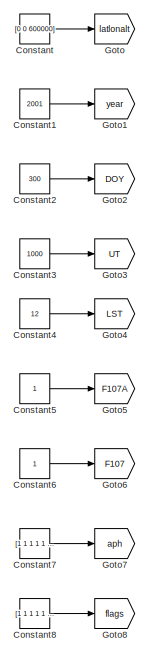
[diagram: root canvas - part 1/2, left side, full height]
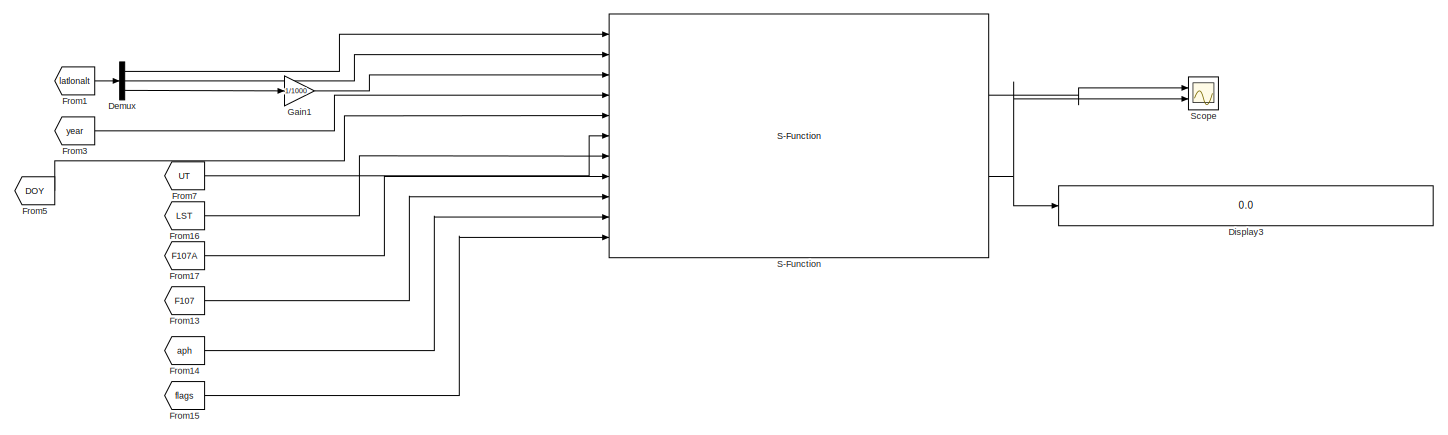
[diagram: root canvas - part 2/2, full width, middle band]
MODEL test_rapidaccel
KIND model
BLOCK [Constant] Constant
  SID = 2
  Value = [0 0 600000]
BLOCK [Constant] Constant1
  SID = 3
  Value = 2001
BLOCK [Constant] Constant2
  SID = 4
  Value = 300
BLOCK [Constant] Constant3
  SID = 5
  Value = 1000
BLOCK [Constant] Constant4
  SID = 6
  Value = 12
BLOCK [Constant] Constant5
  SID = 7
BLOCK [Constant] Constant6
  SID = 8
BLOCK [Constant] Constant7
  SID = 9
  Value = [1 1 1 1 1 1 1]
BLOCK [Constant] Constant8
  SID = 10
  Value = [1 1 1 1 1 1 1 1 1 1 1 1 1 1 1 1 1 1 1 1 1 1 1]
BLOCK [Demux] Demux
  DisplayOption = bar
  Outputs = 3
  Ports = [1, 3]
  SID = 20
BLOCK [Display] Display3
  Decimation = 1
  Format = long_e
  Lockdown = off
  Ports = [1]
  SID = 31
BLOCK [From] From1
  GotoTag = latlonalt
  SID = 21
BLOCK [From] From13
  GotoTag = F107
  SID = 22
BLOCK [From] From14
  GotoTag = aph
  SID = 23
BLOCK [From] From15
  GotoTag = flags
  SID = 24
BLOCK [From] From16
  GotoTag = LST
  SID = 25
BLOCK [From] From17
  GotoTag = F107A
  SID = 26
BLOCK [From] From3
  GotoTag = year
  SID = 27
BLOCK [From] From5
  GotoTag = DOY
  SID = 28
BLOCK [From] From7
  GotoTag = UT
  SID = 29
BLOCK [Gain] Gain1
  Gain = 1/1000
  OutDataTypeStr = Inherit: Inherit via internal rule
  ParamDataTypeStr = Inherit: Inherit via internal rule
  SID = 30
  SaturateOnIntegerOverflow = off
BLOCK [Goto] Goto
  GotoTag = latlonalt
  SID = 11
  TagVisibility = local
BLOCK [Goto] Goto1
  GotoTag = year
  SID = 12
  TagVisibility = local
BLOCK [Goto] Goto2
  GotoTag = DOY
  SID = 13
  TagVisibility = local
BLOCK [Goto] Goto3
  GotoTag = UT
  SID = 14
  TagVisibility = local
BLOCK [Goto] Goto4
  GotoTag = LST
  SID = 15
  TagVisibility = local
BLOCK [Goto] Goto5
  GotoTag = F107A
  SID = 16
  TagVisibility = local
BLOCK [Goto] Goto6
  GotoTag = F107
  SID = 17
  TagVisibility = local
BLOCK [Goto] Goto7
  GotoTag = aph
  SID = 18
  TagVisibility = local
BLOCK [Goto] Goto8
  GotoTag = flags
  SID = 19
  TagVisibility = local
BLOCK [S-Function] S-Function
  EnableBusSupport = off
  FunctionName = sfunc_nrlmsise00
  Ports = [11, 2]
  SID = 1
BLOCK [Scope] Scope
  DataFormat = StructureWithTime
  Floating = off
  LimitDataPoints = off
  NumInputPorts = 2
  Ports = [2]
  SID = 42
  SampleTime = 0
  YMax = 442.32~2.752e-018
  YMin = 442.32~2.752e-018
LINE Constant1:1 -> Goto1:1
LINE Constant2:1 -> Goto2:1
LINE Constant3:1 -> Goto3:1
LINE Constant4:1 -> Goto4:1
LINE Constant5:1 -> Goto5:1
LINE Constant6:1 -> Goto6:1
LINE Constant7:1 -> Goto7:1
LINE Constant8:1 -> Goto8:1
LINE Constant:1 -> Goto:1
LINE Demux:1 -> S-Function:1
LINE Demux:2 -> S-Function:2
LINE Demux:3 -> Gain1:1
LINE From13:1 -> S-Function:9
LINE From14:1 -> S-Function:10
LINE From15:1 -> S-Function:11
LINE From16:1 -> S-Function:7
LINE From17:1 -> S-Function:8
LINE From1:1 -> Demux:1
LINE From3:1 -> S-Function:4
LINE From5:1 -> S-Function:5
LINE From7:1 -> S-Function:6
LINE Gain1:1 -> S-Function:3
LINE S-Function:1 -> Scope:1
NET S-Function:2 -> Display3:1, Scope:2
note: NET lines group one-source signal fan-out (src -> all destinations, sorted); 1:1 wires keep LINE
